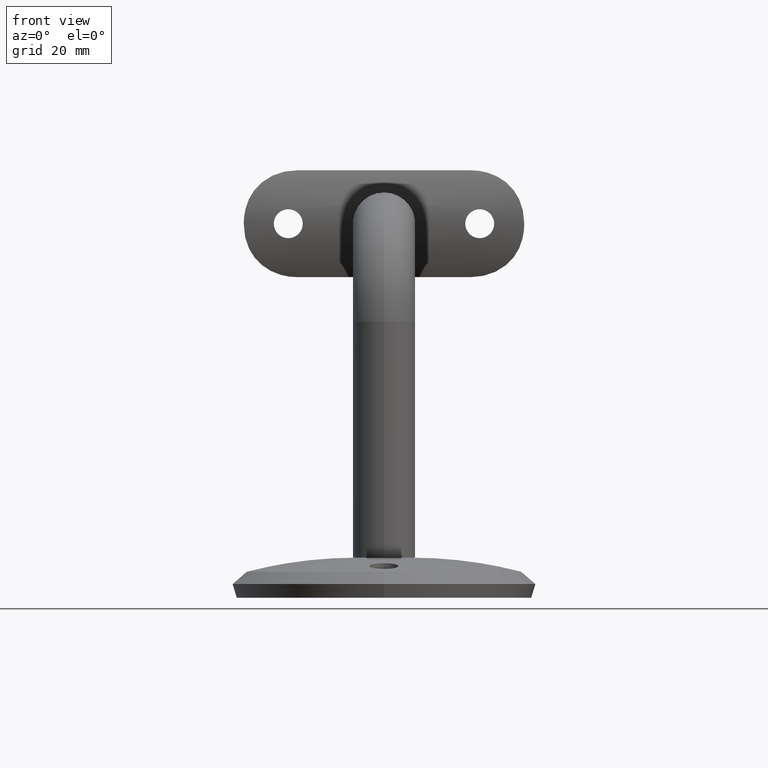
[diagram: clean part render]
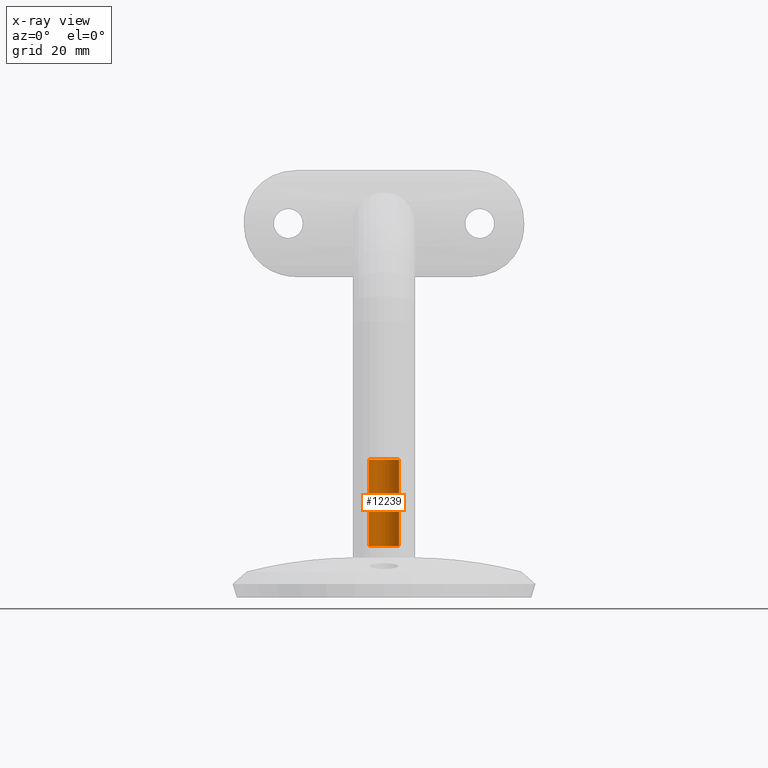
[diagram: x-ray — body ghosted, one internal face saturated and labeled with its STEP entity id]
A machine part, front view, then the same camera in x-ray: the body is ghosted and one INTERNAL B-rep face — a face not visible from any outside direction — is saturated and labeled: STEP entity #12239.
In plain terms, the highlighted cylindrical surface (edge-blend (fillet) strip) has radius 3.4 mm, axis along (-0, -0, -1).
Its self-contained STEP definition (entity closure, byte-faithful):
#43 = VERTEX_POINT ( 'NONE', #14634 ) ;
#276 = ORIENTED_EDGE ( 'NONE', *, *, #14637, .F. ) ;
#323 = FACE_OUTER_BOUND ( 'NONE', #11167, .T. ) ;
#712 = DIRECTION ( 'NONE',  ( -0.000000000000000000, -0.000000000000000000, -1.000000000000000000 ) ) ;
#830 = EDGE_CURVE ( 'NONE', #43, #6149, #9973, .T. ) ;
#1031 = AXIS2_PLACEMENT_3D ( 'NONE', #11148, #13750, #2636 ) ;
#1851 = ORIENTED_EDGE ( 'NONE', *, *, #16204, .F. ) ;
#2089 = VECTOR ( 'NONE', #3404, 1000.000000000000000 ) ;
#2636 = DIRECTION ( 'NONE',  ( -1.000000000000000000, 0.000000000000000000, 0.000000000000000000 ) ) ;
#3404 = DIRECTION ( 'NONE',  ( -0.000000000000000000, -0.000000000000000000, -1.000000000000000000 ) ) ;
#4255 = DIRECTION ( 'NONE',  ( 0.000000000000000000, 0.000000000000000000, 1.000000000000000000 ) ) ;
#4314 = CIRCLE ( 'NONE', #13686, 3.399999999999985700 ) ;
#4645 = DIRECTION ( 'NONE',  ( -0.000000000000000000, -0.000000000000000000, -1.000000000000000000 ) ) ;
#4705 = CARTESIAN_POINT ( 'NONE',  ( 0.000000000000000000, 0.000000000000000000, 21.99999999999999289 ) ) ;
#4706 = VECTOR ( 'NONE', #712, 1000.000000000000000 ) ;
#5114 = CARTESIAN_POINT ( 'NONE',  ( -3.399999999999987477, 0.000000000000000000, 0.000000000000000000 ) ) ;
#5467 = AXIS2_PLACEMENT_3D ( 'NONE', #5495, #4255, #11828 ) ;
#5495 = CARTESIAN_POINT ( 'NONE',  ( 0.000000000000000000, 0.000000000000000000, 2.600000000000008527 ) ) ;
#5713 = ORIENTED_EDGE ( 'NONE', *, *, #16653, .T. ) ;
#6149 = VERTEX_POINT ( 'NONE', #12108 ) ;
#6957 = CARTESIAN_POINT ( 'NONE',  ( 3.399999999999987477, 4.163799117100985768E-16, 0.000000000000000000 ) ) ;
#7109 = DIRECTION ( 'NONE',  ( -1.000000000000000000, 0.000000000000000000, 0.000000000000000000 ) ) ;
#7340 = CYLINDRICAL_SURFACE ( 'NONE', #1031, 3.399999999999987477 ) ;
#9109 = VERTEX_POINT ( 'NONE', #9117 ) ;
#9117 = CARTESIAN_POINT ( 'NONE',  ( 3.399999999999985700, 4.163799117100984782E-16, 21.99999999999999289 ) ) ;
#9219 = VERTEX_POINT ( 'NONE', #10234 ) ;
#9973 = CIRCLE ( 'NONE', #5467, 3.399999999999987477 ) ;
#10234 = CARTESIAN_POINT ( 'NONE',  ( -3.399999999999985700, 0.000000000000000000, 21.99999999999999289 ) ) ;
#11108 = LINE ( 'NONE', #6957, #4706 ) ;
#11148 = CARTESIAN_POINT ( 'NONE',  ( 0.000000000000000000, 0.000000000000000000, 0.000000000000000000 ) ) ;
#11167 = EDGE_LOOP ( 'NONE', ( #1851, #276, #5713, #12300 ) ) ;
#11828 = DIRECTION ( 'NONE',  ( -1.000000000000000000, 0.000000000000000000, 0.000000000000000000 ) ) ;
#12108 = CARTESIAN_POINT ( 'NONE',  ( -3.399999999999987477, 0.000000000000000000, 2.600000000000008527 ) ) ;
#12239 = ADVANCED_FACE ( 'NONE', ( #323 ), #7340, .F. ) ;
#12300 = ORIENTED_EDGE ( 'NONE', *, *, #830, .F. ) ;
#13686 = AXIS2_PLACEMENT_3D ( 'NONE', #4705, #4645, #7109 ) ;
#13750 = DIRECTION ( 'NONE',  ( -0.000000000000000000, -0.000000000000000000, -1.000000000000000000 ) ) ;
#14572 = LINE ( 'NONE', #5114, #2089 ) ;
#14634 = CARTESIAN_POINT ( 'NONE',  ( 3.399999999999987921, 5.755839955992553738E-16, 2.600000000000008527 ) ) ;
#14637 = EDGE_CURVE ( 'NONE', #9219, #9109, #4314, .T. ) ;
#16204 = EDGE_CURVE ( 'NONE', #9109, #43, #11108, .T. ) ;
#16653 = EDGE_CURVE ( 'NONE', #9219, #6149, #14572, .T. ) ;